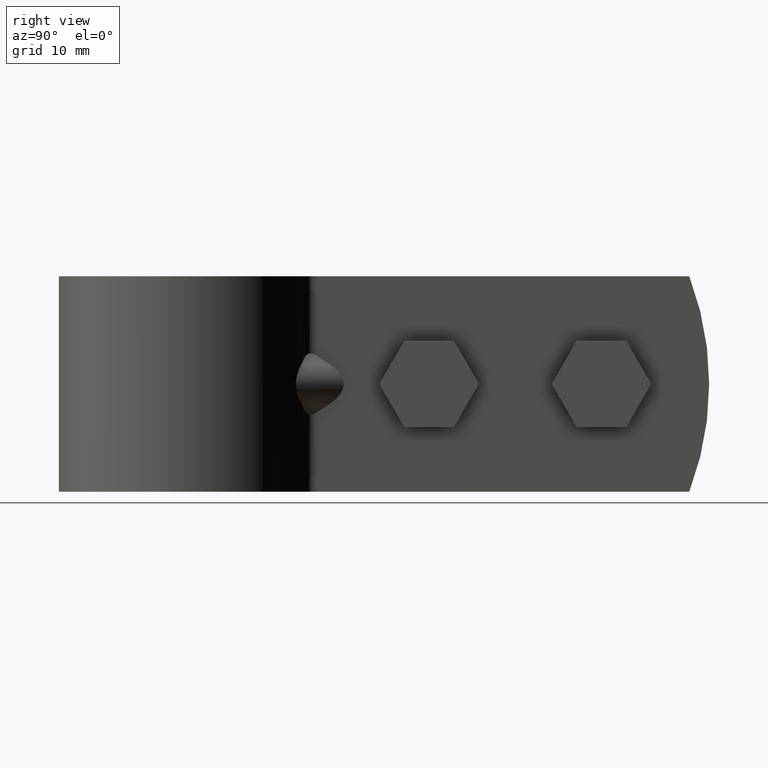
[diagram: clean part render]
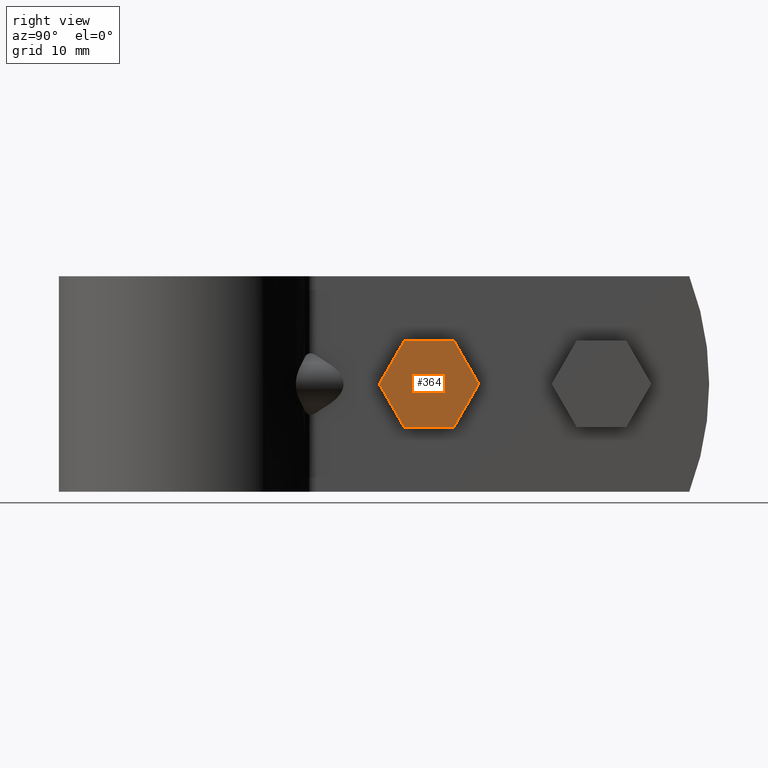
[diagram: same view with one face highlighted and labeled with its STEP entity id]
A machine part, right view. The second image highlights one B-rep face of the part: STEP entity #364.
In plain terms, the highlighted planar face has unit normal (-1, 0, 0).
Its self-contained STEP definition (entity closure, byte-faithful):
#364 = ADVANCED_FACE( '', ( #592 ), #593, .F. );
#592 = FACE_OUTER_BOUND( '', #824, .T. );
#593 = PLANE( '', #825 );
#824 = EDGE_LOOP( '', ( #1579, #1580, #1581, #1582, #1583, #1584 ) );
#825 = AXIS2_PLACEMENT_3D( '', #1585, #1586, #1587 );
#1579 = ORIENTED_EDGE( '', *, *, #1841, .T. );
#1580 = ORIENTED_EDGE( '', *, *, #1844, .T. );
#1581 = ORIENTED_EDGE( '', *, *, #1847, .T. );
#1582 = ORIENTED_EDGE( '', *, *, #1848, .T. );
#1583 = ORIENTED_EDGE( '', *, *, #1849, .T. );
#1584 = ORIENTED_EDGE( '', *, *, #1850, .T. );
#1585 = CARTESIAN_POINT( '', ( 9.10000000000000, 19.4027139264325, -5.00000000000000 ) );
#1586 = DIRECTION( '', ( -1.00000000000000, 6.06692130572647E-017, 0.000000000000000 ) );
#1587 = DIRECTION( '', ( 0.000000000000000, 0.000000000000000, 1.00000000000000 ) );
#1841 = EDGE_CURVE( '', #2234, #2232, #2235, .T. );
#1844 = EDGE_CURVE( '', #2232, #2237, #2239, .T. );
#1847 = EDGE_CURVE( '', #2237, #2244, #2245, .T. );
#1848 = EDGE_CURVE( '', #2244, #2246, #2247, .T. );
#1849 = EDGE_CURVE( '', #2246, #2248, #2249, .T. );
#1850 = EDGE_CURVE( '', #2248, #2234, #2250, .T. );
#2232 = VERTEX_POINT( '', #2926 );
#2234 = VERTEX_POINT( '', #2929 );
#2235 = LINE( '', #2930, #2931 );
#2237 = VERTEX_POINT( '', #2934 );
#2239 = LINE( '', #2937, #2938 );
#2244 = VERTEX_POINT( '', #2943 );
#2245 = LINE( '', #2944, #2945 );
#2246 = VERTEX_POINT( '', #2946 );
#2247 = LINE( '', #2947, #2948 );
#2248 = VERTEX_POINT( '', #2949 );
#2249 = LINE( '', #2950, #2951 );
#2250 = LINE( '', #2952, #2953 );
#2926 = CARTESIAN_POINT( '', ( 9.10000000000000, 30.9497193102250, -5.00000000000000 ) );
#2929 = CARTESIAN_POINT( '', ( 9.10000000000000, 25.1762166183287, -5.00000000000000 ) );
#2930 = CARTESIAN_POINT( '', ( 9.10000000000000, 25.1762166183287, -5.00000000000000 ) );
#2931 = VECTOR( '', #3341, 1000.00000000000 );
#2934 = CARTESIAN_POINT( '', ( 9.10000000000000, 33.8364706561731, -8.67361737988404E-016 ) );
#2937 = CARTESIAN_POINT( '', ( 9.10000000000000, 30.9497193102250, -5.00000000000000 ) );
#2938 = VECTOR( '', #3344, 1000.00000000000 );
#2943 = CARTESIAN_POINT( '', ( 9.10000000000000, 30.9497193102250, 5.00000000000000 ) );
#2944 = CARTESIAN_POINT( '', ( 9.10000000000000, 33.8364706561731, -1.22087514200374E-015 ) );
#2945 = VECTOR( '', #3351, 1000.00000000000 );
#2946 = CARTESIAN_POINT( '', ( 9.10000000000000, 25.1762166183287, 5.00000000000000 ) );
#2947 = CARTESIAN_POINT( '', ( 9.10000000000000, 30.9497193102250, 5.00000000000000 ) );
#2948 = VECTOR( '', #3352, 1000.00000000000 );
#2949 = CARTESIAN_POINT( '', ( 9.10000000000000, 22.2894652723806, -8.67361737988404E-016 ) );
#2950 = CARTESIAN_POINT( '', ( 9.10000000000000, 25.1762166183287, 5.00000000000000 ) );
#2951 = VECTOR( '', #3353, 1000.00000000000 );
#2952 = CARTESIAN_POINT( '', ( 9.10000000000000, 22.2894652723806, 1.93178474057610E-016 ) );
#2953 = VECTOR( '', #3354, 1000.00000000000 );
#3341 = DIRECTION( '', ( 6.06692130572647E-017, 1.00000000000000, -3.00462919747432E-016 ) );
#3344 = DIRECTION( '', ( 3.03346065286324E-017, 0.500000000000000, 0.866025403784439 ) );
#3351 = DIRECTION( '', ( -3.03346065286324E-017, -0.500000000000000, 0.866025403784439 ) );
#3352 = DIRECTION( '', ( -6.06692130572647E-017, -1.00000000000000, 0.000000000000000 ) );
#3353 = DIRECTION( '', ( -3.03346065286324E-017, -0.500000000000000, -0.866025403784439 ) );
#3354 = DIRECTION( '', ( 3.03346065286324E-017, 0.500000000000000, -0.866025403784439 ) );